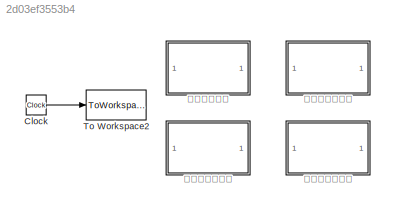
MODEL slx_2d03ef3553b4
KIND model
CONFIG AbsTol = auto
CONFIG FixedStep = auto
CONFIG MaxStep = auto
CONFIG MinStep = auto
CONFIG RelTol = 1e-3
CONFIG SampleTimeConstraint = Unconstrained
CONFIG Solver = VariableStepAuto
CONFIG SolverMode = Auto
CONFIG SolverName = VariableStepAuto
CONFIG StartTime = 0.0
CONFIG StopTime = 10.0
BLOCK [Clock] Clock
BLOCK [ToWorkspace] To Workspace2
  FixptAsFi = on
  MaxDataPoints = inf
  Ports = [1]
  SampleTime = -1
  Save2DSignal = 3-D array (concatenate along third dimension)
  VariableName = t
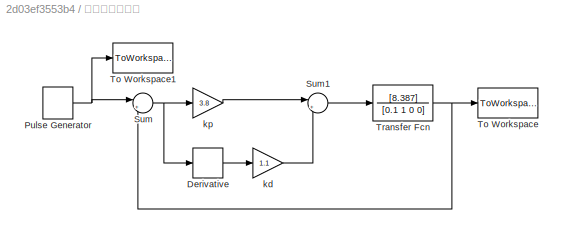
BLOCK [SubSystem] 俯仰角速率方向
  Ports = []
  RequestExecContextInheritance = off
  Variant = off
BLOCK [Derivative] 俯仰角速率方向/Derivative
BLOCK [DiscretePulseGenerator] 俯仰角速率方向/Pulse Generator
  Period = 12
  PhaseDelay = 3
  Ports = [0, 1]
  PulseType = Time based
  PulseWidth = 25
BLOCK [Sum] 俯仰角速率方向/Sum
  IconShape = round
  InputSameDT = off
  Inputs = |+-
  OutDataTypeStr = Inherit: Inherit via internal rule
  Ports = [2, 1]
  SaturateOnIntegerOverflow = off
BLOCK [Sum] 俯仰角速率方向/Sum1
  IconShape = round
  InputSameDT = off
  Inputs = |++
  OutDataTypeStr = Inherit: Inherit via internal rule
  Ports = [2, 1]
  SaturateOnIntegerOverflow = off
BLOCK [ToWorkspace] 俯仰角速率方向/To Workspace
  FixptAsFi = on
  MaxDataPoints = inf
  Ports = [1]
  SampleTime = -1
  Save2DSignal = 3-D array (concatenate along third dimension)
  VariableName = dtheta
BLOCK [ToWorkspace] 俯仰角速率方向/To Workspace1
  FixptAsFi = on
  MaxDataPoints = inf
  Ports = [1]
  SampleTime = -1
  Save2DSignal = 3-D array (concatenate along third dimension)
  VariableName = dthetan
BLOCK [TransferFcn] 俯仰角速率方向/Transfer Fcn
  Denominator = [0.1 1 0 0]
  Numerator = [8.387]
BLOCK [Gain] 俯仰角速率方向/kd
  Gain = 1.1
  OutDataTypeStr = Inherit: Inherit via internal rule
  ParamDataTypeStr = Inherit: Inherit via internal rule
  SaturateOnIntegerOverflow = off
BLOCK [Gain] 俯仰角速率方向/kp
  Gain = 3.8
  OutDataTypeStr = Inherit: Inherit via internal rule
  ParamDataTypeStr = Inherit: Inherit via internal rule
  SaturateOnIntegerOverflow = off
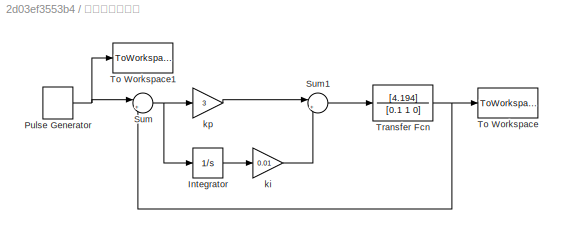
BLOCK [SubSystem] 偏航角速率方向
  Ports = []
  RequestExecContextInheritance = off
  Variant = off
BLOCK [Integrator] 偏航角速率方向/Integrator
  Ports = [1, 1]
BLOCK [DiscretePulseGenerator] 偏航角速率方向/Pulse Generator
  Period = 12
  PhaseDelay = 3
  Ports = [0, 1]
  PulseType = Time based
  PulseWidth = 25
BLOCK [Sum] 偏航角速率方向/Sum
  IconShape = round
  InputSameDT = off
  Inputs = |+-
  OutDataTypeStr = Inherit: Inherit via internal rule
  Ports = [2, 1]
  SaturateOnIntegerOverflow = off
BLOCK [Sum] 偏航角速率方向/Sum1
  IconShape = round
  InputSameDT = off
  Inputs = |++
  OutDataTypeStr = Inherit: Inherit via internal rule
  Ports = [2, 1]
  SaturateOnIntegerOverflow = off
BLOCK [ToWorkspace] 偏航角速率方向/To Workspace
  FixptAsFi = on
  MaxDataPoints = inf
  Ports = [1]
  SampleTime = -1
  Save2DSignal = 3-D array (concatenate along third dimension)
  VariableName = dpsi
BLOCK [ToWorkspace] 偏航角速率方向/To Workspace1
  FixptAsFi = on
  MaxDataPoints = inf
  Ports = [1]
  SampleTime = -1
  Save2DSignal = 3-D array (concatenate along third dimension)
  VariableName = dpsin
BLOCK [TransferFcn] 偏航角速率方向/Transfer Fcn
  Denominator = [0.1 1 0]
  Numerator = [4.194]
BLOCK [Gain] 偏航角速率方向/ki
  Gain = 0.01
  OutDataTypeStr = Inherit: Inherit via internal rule
  ParamDataTypeStr = Inherit: Inherit via internal rule
  SaturateOnIntegerOverflow = off
BLOCK [Gain] 偏航角速率方向/kp
  Gain = 3
  OutDataTypeStr = Inherit: Inherit via internal rule
  ParamDataTypeStr = Inherit: Inherit via internal rule
  SaturateOnIntegerOverflow = off
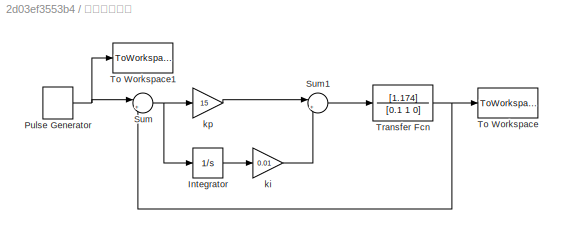
BLOCK [SubSystem] 垂直速率方向
  Ports = []
  RequestExecContextInheritance = off
  Variant = off
BLOCK [Integrator] 垂直速率方向/Integrator
  Ports = [1, 1]
BLOCK [DiscretePulseGenerator] 垂直速率方向/Pulse Generator
  Period = 12
  PhaseDelay = 3
  Ports = [0, 1]
  PulseType = Time based
  PulseWidth = 25
BLOCK [Sum] 垂直速率方向/Sum
  IconShape = round
  InputSameDT = off
  Inputs = |+-
  OutDataTypeStr = Inherit: Inherit via internal rule
  Ports = [2, 1]
  SaturateOnIntegerOverflow = off
BLOCK [Sum] 垂直速率方向/Sum1
  IconShape = round
  InputSameDT = off
  Inputs = |++
  OutDataTypeStr = Inherit: Inherit via internal rule
  Ports = [2, 1]
  SaturateOnIntegerOverflow = off
BLOCK [ToWorkspace] 垂直速率方向/To Workspace
  FixptAsFi = on
  MaxDataPoints = inf
  Ports = [1]
  SampleTime = -1
  Save2DSignal = 3-D array (concatenate along third dimension)
  VariableName = dz
BLOCK [ToWorkspace] 垂直速率方向/To Workspace1
  FixptAsFi = on
  MaxDataPoints = inf
  Ports = [1]
  SampleTime = -1
  Save2DSignal = 3-D array (concatenate along third dimension)
  VariableName = dzn
BLOCK [TransferFcn] 垂直速率方向/Transfer Fcn
  Denominator = [0.1 1 0]
  Numerator = [1.174]
BLOCK [Gain] 垂直速率方向/ki
  Gain = 0.01
  OutDataTypeStr = Inherit: Inherit via internal rule
  ParamDataTypeStr = Inherit: Inherit via internal rule
  SaturateOnIntegerOverflow = off
BLOCK [Gain] 垂直速率方向/kp
  Gain = 15
  OutDataTypeStr = Inherit: Inherit via internal rule
  ParamDataTypeStr = Inherit: Inherit via internal rule
  SaturateOnIntegerOverflow = off
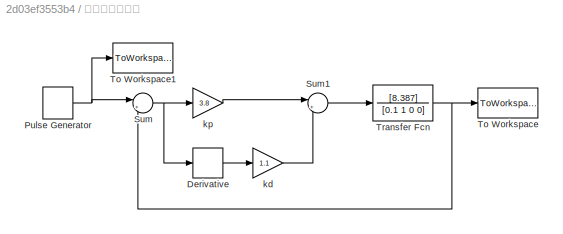
BLOCK [SubSystem] 滚转角速率方向
  Ports = []
  RequestExecContextInheritance = off
  Variant = off
BLOCK [Derivative] 滚转角速率方向/Derivative
BLOCK [DiscretePulseGenerator] 滚转角速率方向/Pulse Generator
  Period = 12
  PhaseDelay = 3
  Ports = [0, 1]
  PulseType = Time based
  PulseWidth = 25
BLOCK [Sum] 滚转角速率方向/Sum
  IconShape = round
  InputSameDT = off
  Inputs = |+-
  OutDataTypeStr = Inherit: Inherit via internal rule
  Ports = [2, 1]
  SaturateOnIntegerOverflow = off
BLOCK [Sum] 滚转角速率方向/Sum1
  IconShape = round
  InputSameDT = off
  Inputs = |++
  OutDataTypeStr = Inherit: Inherit via internal rule
  Ports = [2, 1]
  SaturateOnIntegerOverflow = off
BLOCK [ToWorkspace] 滚转角速率方向/To Workspace
  FixptAsFi = on
  MaxDataPoints = inf
  Ports = [1]
  SampleTime = -1
  Save2DSignal = 3-D array (concatenate along third dimension)
  VariableName = dphi
BLOCK [ToWorkspace] 滚转角速率方向/To Workspace1
  FixptAsFi = on
  MaxDataPoints = inf
  Ports = [1]
  SampleTime = -1
  Save2DSignal = 3-D array (concatenate along third dimension)
  VariableName = dphin
BLOCK [TransferFcn] 滚转角速率方向/Transfer Fcn
  Denominator = [0.1 1 0 0]
  Numerator = [8.387]
BLOCK [Gain] 滚转角速率方向/kd
  Gain = 1.1
  OutDataTypeStr = Inherit: Inherit via internal rule
  ParamDataTypeStr = Inherit: Inherit via internal rule
  SaturateOnIntegerOverflow = off
BLOCK [Gain] 滚转角速率方向/kp
  Gain = 3.8
  OutDataTypeStr = Inherit: Inherit via internal rule
  ParamDataTypeStr = Inherit: Inherit via internal rule
  SaturateOnIntegerOverflow = off
LINE Clock:1 -> To Workspace2:1
LINE 俯仰角速率方向/Derivative:1 -> 俯仰角速率方向/kd:1
NET 俯仰角速率方向/Pulse Generator:1 -> 俯仰角速率方向/Sum:1, 俯仰角速率方向/To Workspace1:1
LINE 俯仰角速率方向/Sum1:1 -> 俯仰角速率方向/Transfer Fcn:1
NET 俯仰角速率方向/Sum:1 -> 俯仰角速率方向/Derivative:1, 俯仰角速率方向/kp:1
NET 俯仰角速率方向/Transfer Fcn:1 -> 俯仰角速率方向/Sum:2, 俯仰角速率方向/To Workspace:1
LINE 俯仰角速率方向/kd:1 -> 俯仰角速率方向/Sum1:2
LINE 俯仰角速率方向/kp:1 -> 俯仰角速率方向/Sum1:1
LINE 偏航角速率方向/Integrator:1 -> 偏航角速率方向/ki:1
NET 偏航角速率方向/Pulse Generator:1 -> 偏航角速率方向/Sum:1, 偏航角速率方向/To Workspace1:1
LINE 偏航角速率方向/Sum1:1 -> 偏航角速率方向/Transfer Fcn:1
NET 偏航角速率方向/Sum:1 -> 偏航角速率方向/Integrator:1, 偏航角速率方向/kp:1
NET 偏航角速率方向/Transfer Fcn:1 -> 偏航角速率方向/Sum:2, 偏航角速率方向/To Workspace:1
LINE 偏航角速率方向/ki:1 -> 偏航角速率方向/Sum1:2
LINE 偏航角速率方向/kp:1 -> 偏航角速率方向/Sum1:1
LINE 垂直速率方向/Integrator:1 -> 垂直速率方向/ki:1
NET 垂直速率方向/Pulse Generator:1 -> 垂直速率方向/Sum:1, 垂直速率方向/To Workspace1:1
LINE 垂直速率方向/Sum1:1 -> 垂直速率方向/Transfer Fcn:1
NET 垂直速率方向/Sum:1 -> 垂直速率方向/Integrator:1, 垂直速率方向/kp:1
NET 垂直速率方向/Transfer Fcn:1 -> 垂直速率方向/Sum:2, 垂直速率方向/To Workspace:1
LINE 垂直速率方向/ki:1 -> 垂直速率方向/Sum1:2
LINE 垂直速率方向/kp:1 -> 垂直速率方向/Sum1:1
LINE 滚转角速率方向/Derivative:1 -> 滚转角速率方向/kd:1
NET 滚转角速率方向/Pulse Generator:1 -> 滚转角速率方向/Sum:1, 滚转角速率方向/To Workspace1:1
LINE 滚转角速率方向/Sum1:1 -> 滚转角速率方向/Transfer Fcn:1
NET 滚转角速率方向/Sum:1 -> 滚转角速率方向/Derivative:1, 滚转角速率方向/kp:1
NET 滚转角速率方向/Transfer Fcn:1 -> 滚转角速率方向/Sum:2, 滚转角速率方向/To Workspace:1
LINE 滚转角速率方向/kd:1 -> 滚转角速率方向/Sum1:2
LINE 滚转角速率方向/kp:1 -> 滚转角速率方向/Sum1:1
note: NET lines group one-source signal fan-out (src -> all destinations, sorted); 1:1 wires keep LINE
